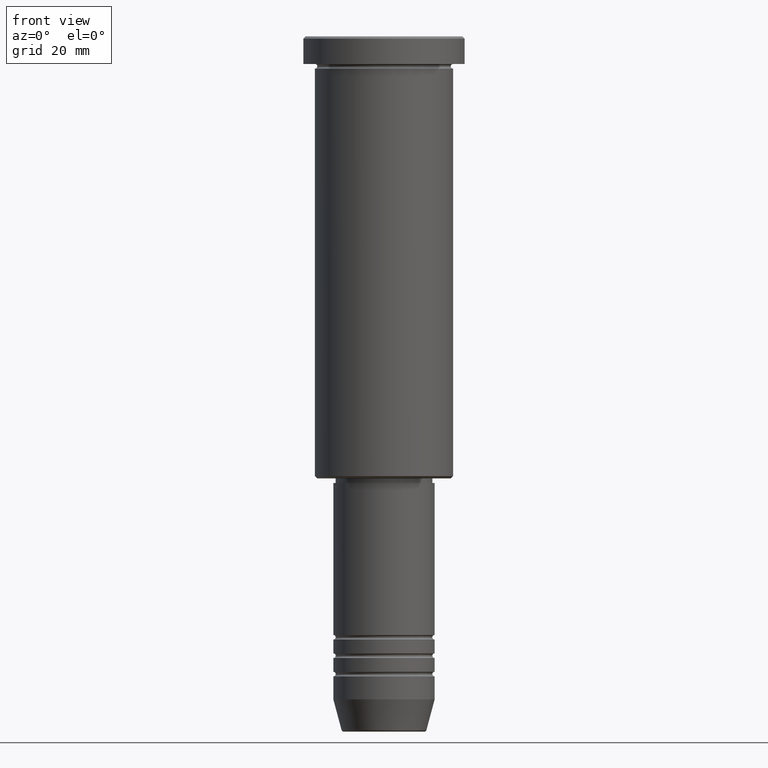
[diagram: clean part render]
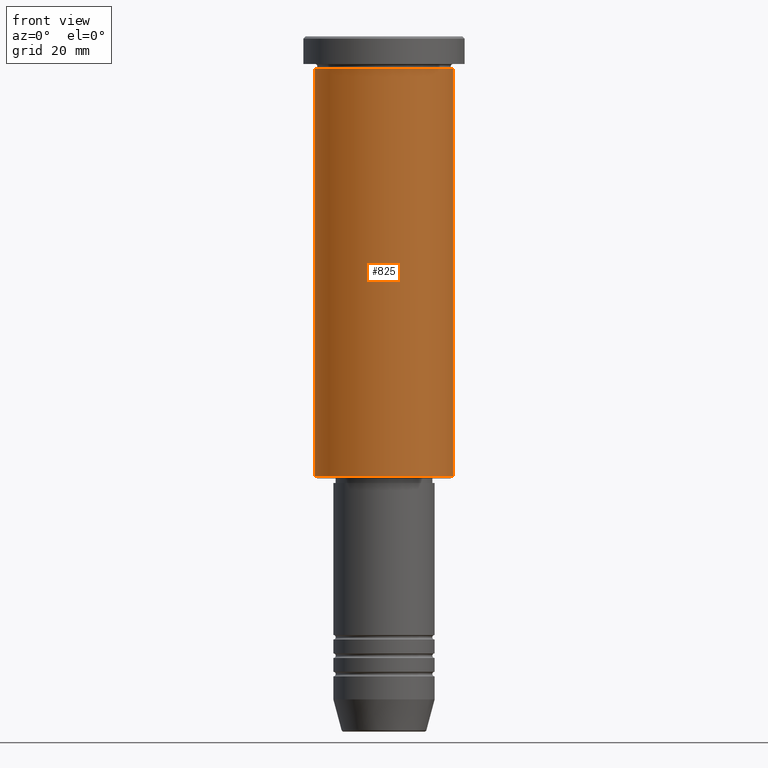
[diagram: same view with one face highlighted and labeled with its STEP entity id]
A machine part, front view. The second image highlights one B-rep face of the part: STEP entity #825.
In plain terms, the highlighted cylindrical surface (partial cylindrical patch) has radius 15 mm, axis along (-0, -0, 1).
Its self-contained STEP definition (entity closure, byte-faithful):
#75 = VERTEX_POINT ( 'NONE', #1023 ) ;
#111 = CIRCLE ( 'NONE', #482, 15.00000000000000000 ) ;
#134 = EDGE_CURVE ( 'NONE', #696, #692, #308, .T. ) ;
#142 = CARTESIAN_POINT ( 'NONE',  ( -15.00000000000000000, 1.836970198721029589E-15, 0.000000000000000000 ) ) ;
#145 = ORIENTED_EDGE ( 'NONE', *, *, #535, .T. ) ;
#153 = AXIS2_PLACEMENT_3D ( 'NONE', #710, #434, #1156 ) ;
#248 = CYLINDRICAL_SURFACE ( 'NONE', #1103, 15.00000000000000000 ) ;
#253 = CARTESIAN_POINT ( 'NONE',  ( 15.00000000000000000, 0.000000000000000000, 0.000000000000000000 ) ) ;
#282 = DIRECTION ( 'NONE',  ( -1.000000000000000000, 0.000000000000000000, 0.000000000000000000 ) ) ;
#286 = CARTESIAN_POINT ( 'NONE',  ( 0.000000000000000000, 0.000000000000000000, -95.50000000000000000 ) ) ;
#299 = DIRECTION ( 'NONE',  ( 1.000000000000000000, 0.000000000000000000, 0.000000000000000000 ) ) ;
#308 = LINE ( 'NONE', #142, #780 ) ;
#366 = FACE_OUTER_BOUND ( 'NONE', #677, .T. ) ;
#434 = DIRECTION ( 'NONE',  ( -0.000000000000000000, -0.000000000000000000, 1.000000000000000000 ) ) ;
#435 = ORIENTED_EDGE ( 'NONE', *, *, #134, .F. ) ;
#482 = AXIS2_PLACEMENT_3D ( 'NONE', #286, #1017, #282 ) ;
#535 = EDGE_CURVE ( 'NONE', #696, #683, #111, .T. ) ;
#677 = EDGE_LOOP ( 'NONE', ( #435, #145, #962, #1038 ) ) ;
#683 = VERTEX_POINT ( 'NONE', #1124 ) ;
#692 = VERTEX_POINT ( 'NONE', #1128 ) ;
#696 = VERTEX_POINT ( 'NONE', #867 ) ;
#710 = CARTESIAN_POINT ( 'NONE',  ( 0.000000000000000000, 0.000000000000000000, -6.999999999999995559 ) ) ;
#711 = CIRCLE ( 'NONE', #153, 15.00000000000000000 ) ;
#747 = CARTESIAN_POINT ( 'NONE',  ( 0.000000000000000000, 0.000000000000000000, 0.000000000000000000 ) ) ;
#780 = VECTOR ( 'NONE', #878, 1000.000000000000000 ) ;
#796 = LINE ( 'NONE', #253, #881 ) ;
#825 = ADVANCED_FACE ( 'NONE', ( #366 ), #248, .T. ) ;
#867 = CARTESIAN_POINT ( 'NONE',  ( -15.00000000000000000, 1.836970198721029589E-15, -95.50000000000000000 ) ) ;
#870 = DIRECTION ( 'NONE',  ( -0.000000000000000000, -0.000000000000000000, 1.000000000000000000 ) ) ;
#878 = DIRECTION ( 'NONE',  ( -0.000000000000000000, -0.000000000000000000, 1.000000000000000000 ) ) ;
#881 = VECTOR ( 'NONE', #1168, 1000.000000000000000 ) ;
#962 = ORIENTED_EDGE ( 'NONE', *, *, #964, .T. ) ;
#964 = EDGE_CURVE ( 'NONE', #683, #75, #796, .T. ) ;
#1002 = EDGE_CURVE ( 'NONE', #692, #75, #711, .T. ) ;
#1017 = DIRECTION ( 'NONE',  ( -0.000000000000000000, -0.000000000000000000, 1.000000000000000000 ) ) ;
#1023 = CARTESIAN_POINT ( 'NONE',  ( 15.00000000000000000, 0.000000000000000000, -6.999999999999995559 ) ) ;
#1038 = ORIENTED_EDGE ( 'NONE', *, *, #1002, .F. ) ;
#1103 = AXIS2_PLACEMENT_3D ( 'NONE', #747, #870, #299 ) ;
#1124 = CARTESIAN_POINT ( 'NONE',  ( 15.00000000000000000, 0.000000000000000000, -95.50000000000000000 ) ) ;
#1128 = CARTESIAN_POINT ( 'NONE',  ( -15.00000000000000000, 1.836970198721029589E-15, -6.999999999999995559 ) ) ;
#1156 = DIRECTION ( 'NONE',  ( 1.000000000000000000, 0.000000000000000000, 0.000000000000000000 ) ) ;
#1168 = DIRECTION ( 'NONE',  ( -0.000000000000000000, -0.000000000000000000, 1.000000000000000000 ) ) ;